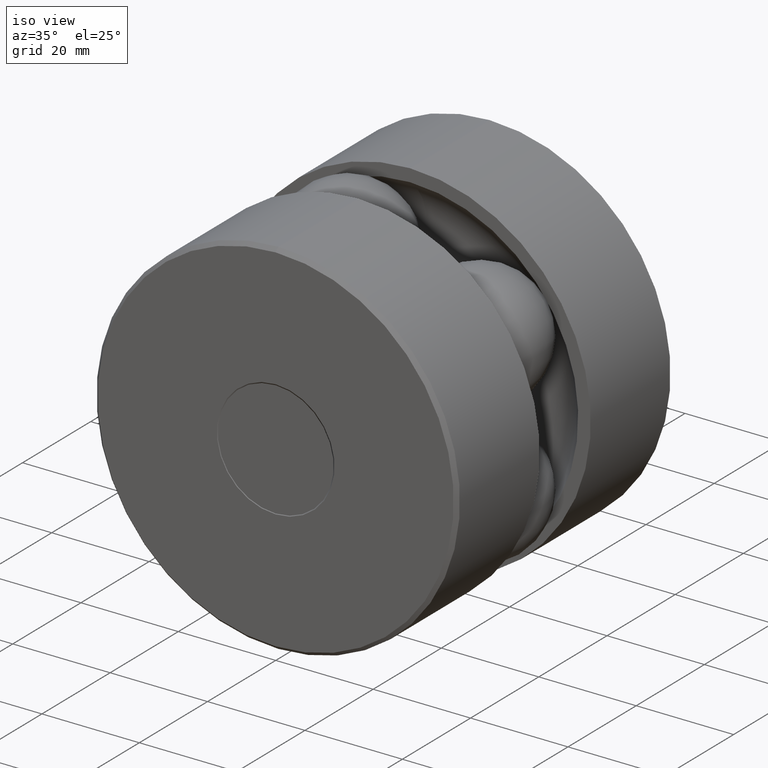
[diagram: clean part render]
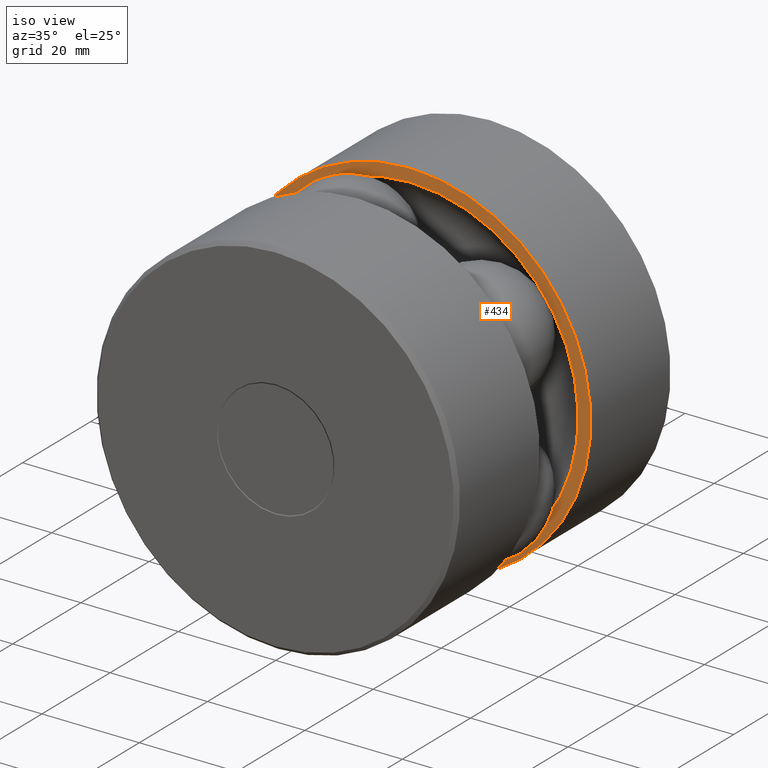
[diagram: same view with one face highlighted and labeled with its STEP entity id]
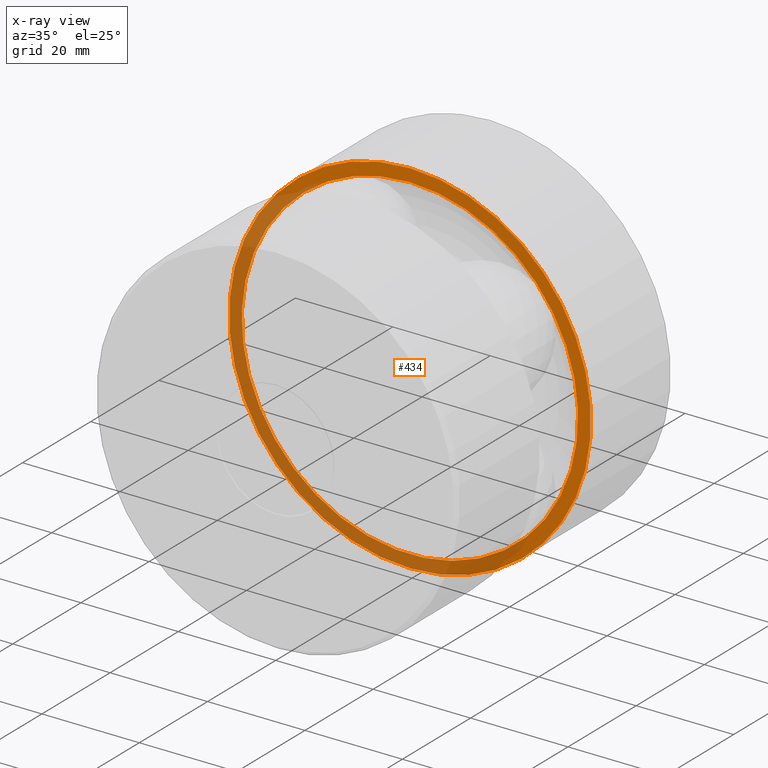
[diagram: x-ray of the same camera — body ghosted, the highlighted face saturated]
A machine part, iso view. The second image highlights one B-rep face of the part: STEP entity #434.
The next image is the same camera in x-ray: the body ghosted, the highlighted face saturated — about 49% of this face is hidden behind the body in this view.
In plain terms, the highlighted planar face has unit normal (0, -1, 0).
Its self-contained STEP definition (entity closure, byte-faithful):
#26 = DIRECTION ( 'NONE',  ( 0.0000000000000000000, -1.000000000000000000, 0.0000000000000000000 ) ) ;
#70 = EDGE_LOOP ( 'NONE', ( #299 ) ) ;
#111 = EDGE_LOOP ( 'NONE', ( #449 ) ) ;
#138 = CIRCLE ( 'NONE', #287, 1.462000000000000200 ) ;
#141 = CARTESIAN_POINT ( 'NONE',  ( 0.0000000000000000000, 1.550000000000000000, 0.0000000000000000000 ) ) ;
#204 = EDGE_CURVE ( 'NONE', #347, #347, #138, .T. ) ;
#212 = FACE_BOUND ( 'NONE', #111, .T. ) ;
#219 = CARTESIAN_POINT ( 'NONE',  ( 0.0000000000000000000, 1.550000000000000000, 0.0000000000000000000 ) ) ;
#249 = CARTESIAN_POINT ( 'NONE',  ( 0.0000000000000000000, 1.550000000000000000, 1.359999999999999900 ) ) ;
#287 = AXIS2_PLACEMENT_3D ( 'NONE', #219, #461, #502 ) ;
#291 = DIRECTION ( 'NONE',  ( 0.0000000000000000000, -0.0000000000000000000, -1.000000000000000000 ) ) ;
#299 = ORIENTED_EDGE ( 'NONE', *, *, #204, .F. ) ;
#303 = PLANE ( 'NONE',  #394 ) ;
#306 = AXIS2_PLACEMENT_3D ( 'NONE', #141, #310, #541 ) ;
#310 = DIRECTION ( 'NONE',  ( -0.0000000000000000000, 1.000000000000000000, -0.0000000000000000000 ) ) ;
#347 = VERTEX_POINT ( 'NONE', #349 ) ;
#349 = CARTESIAN_POINT ( 'NONE',  ( 0.0000000000000000000, 1.550000000000000000, 1.462000000000000200 ) ) ;
#394 = AXIS2_PLACEMENT_3D ( 'NONE', #444, #26, #291 ) ;
#403 = CIRCLE ( 'NONE', #306, 1.359999999999999900 ) ;
#432 = VERTEX_POINT ( 'NONE', #249 ) ;
#434 = ADVANCED_FACE ( 'NONE', ( #212, #534 ), #303, .T. ) ;
#444 = CARTESIAN_POINT ( 'NONE',  ( -1.462000000000000200, 1.550000000000000000, 0.0000000000000000000 ) ) ;
#449 = ORIENTED_EDGE ( 'NONE', *, *, #486, .T. ) ;
#461 = DIRECTION ( 'NONE',  ( -0.0000000000000000000, 1.000000000000000000, -0.0000000000000000000 ) ) ;
#486 = EDGE_CURVE ( 'NONE', #432, #432, #403, .T. ) ;
#502 = DIRECTION ( 'NONE',  ( 0.0000000000000000000, 0.0000000000000000000, 1.000000000000000000 ) ) ;
#534 = FACE_OUTER_BOUND ( 'NONE', #70, .T. ) ;
#541 = DIRECTION ( 'NONE',  ( 0.0000000000000000000, 0.0000000000000000000, 1.000000000000000000 ) ) ;